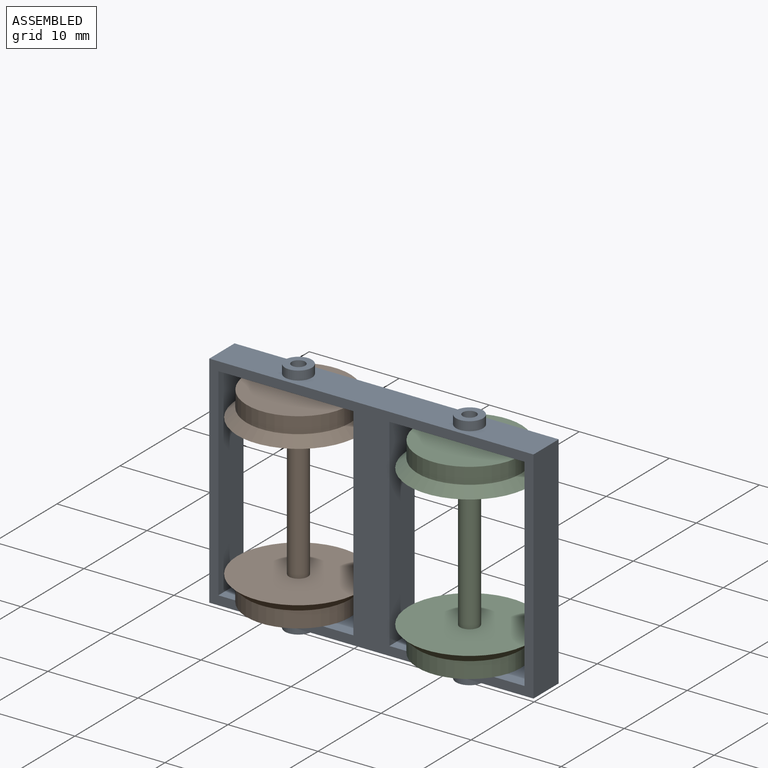
[diagram: assembled view]
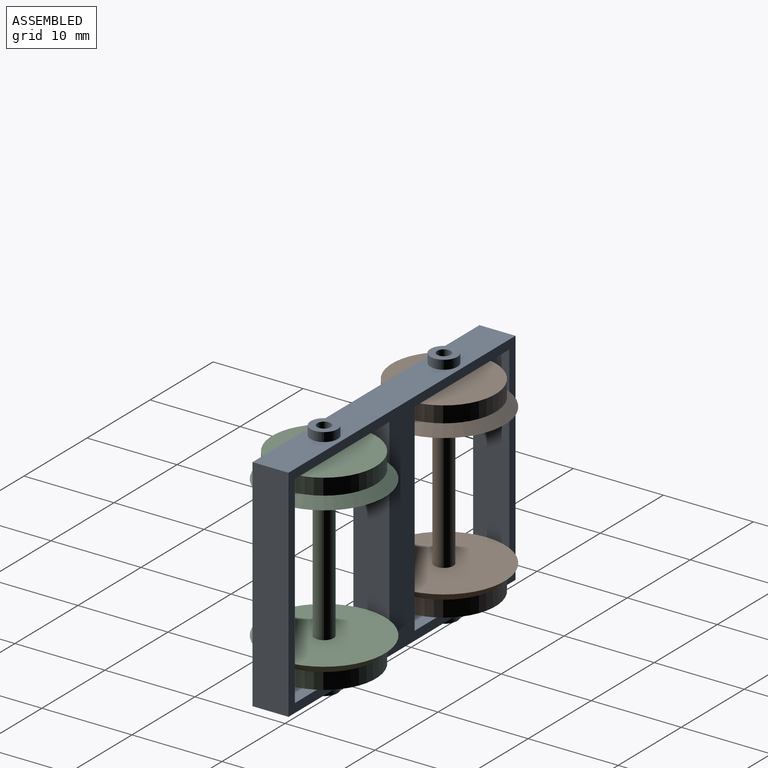
[diagram: assembled view, second angle]
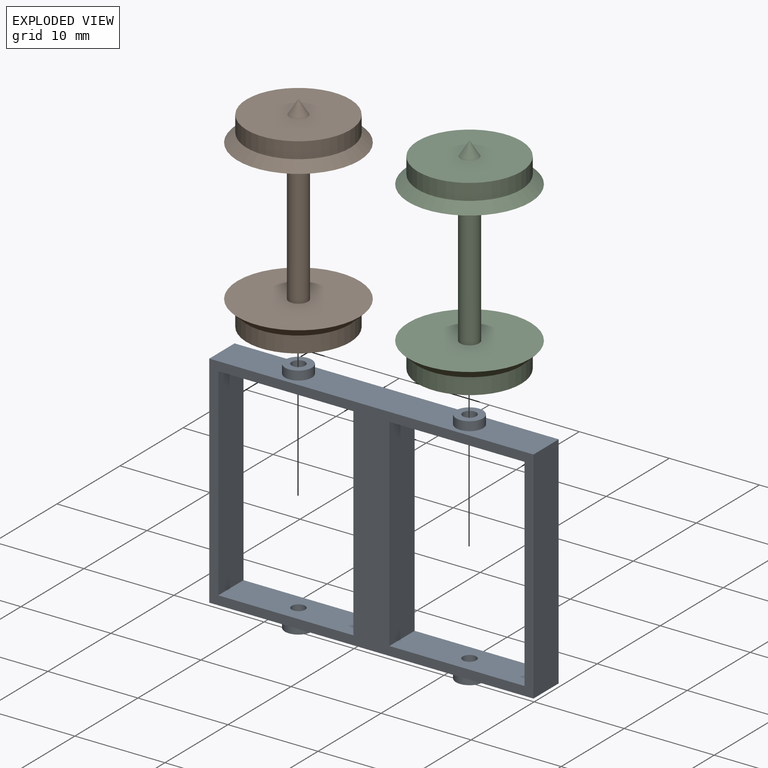
[diagram: exploded view]
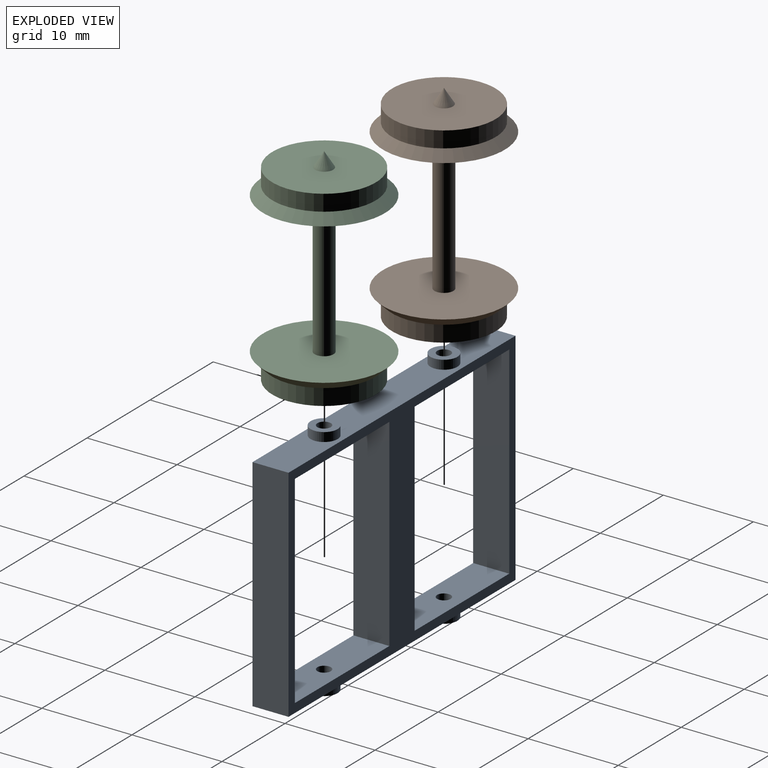
[diagram: exploded view, second angle]
ASSEMBLY  parts=3 mates=2
PART A: 26 faces, bbox 36x4x26.5 mm
  f0: plane 24.5x4mm, normal (-1,0,0), area 98mm2, adj f1,f5,f6,f10
  f1: plane 36x4mm, normal (0,0,-1), area 129.9mm2, adj f0,f5,f6,f8,f15,f20
  f2: plane 22.5x4mm, normal (-1,0,0), area 90mm2, adj f3,f5,f6,f11
  f3: plane 15x4mm, normal (0,0,1), area 58.2mm2, adj f2,f4,f5,f6,f7
  f4: plane 22.5x4mm, normal (1,0,0), area 90mm2, adj f3,f5,f6,f11
  f5: plane 36x24.5mm, normal (0,-1,0), area 207mm2, adj f0,f1,f2,f3,f4,f10,f11,f15
  f6: plane 36x24.5mm, normal (0,1,0), area 207mm2, adj f0,f1,f2,f3,f4,f10,f11,f15
  f7: cylinder r=0.75mm len=2mm, axis (0,0,1), area 9.4mm2, adj f3,f9
  f8: cylinder r=1.5mm len=3mm, axis (0,0,1), area 9.4mm2, adj f1,f9
  f9: plane 3x3mm, normal (0,0,-1), area 5.3mm2, adj f7,f8
  f10: plane 36x4mm, normal (0,0,1), area 129.9mm2, adj f0,f5,f6,f13,f15,f24
  f11: plane 15x4mm, normal (0,0,-1), area 58.2mm2, adj f2,f4,f5,f6,f12
  f12: cylinder r=0.75mm len=2mm, axis (0,0,-1), area 9.4mm2, adj f11,f14
  f13: cylinder r=1.5mm len=3mm, axis (0,0,-1), area 9.4mm2, adj f10,f14
  f14: plane 3x3mm, normal (0,0,1), area 5.3mm2, adj f12,f13
  f15: plane 24.5x4mm, normal (1,0,0), area 98mm2, adj f1,f5,f6,f10
  f16: plane 22.5x4mm, normal (1,0,0), area 90mm2, adj f5,f6,f17,f22
  f17: plane 15x4mm, normal (0,0,1), area 58.2mm2, adj f5,f6,f16,f18,f19
  f18: plane 22.5x4mm, normal (-1,0,0), area 90mm2, adj f5,f6,f17,f22
  f19: cylinder r=0.75mm len=2mm, axis (0,0,1), area 9.4mm2, adj f17,f21
  f20: cylinder r=1.5mm len=3mm, axis (0,0,1), area 9.4mm2, adj f1,f21
  f21: plane 3x3mm, normal (0,0,-1), area 5.3mm2, adj f19,f20
  f22: plane 15x4mm, normal (0,0,-1), area 58.2mm2, adj f5,f6,f16,f18,f23
  f23: cylinder r=0.75mm len=2mm, axis (0,0,-1), area 9.4mm2, adj f22,f25
  f24: cylinder r=1.5mm len=3mm, axis (0,0,-1), area 9.4mm2, adj f10,f25
  f25: plane 3x3mm, normal (0,0,1), area 5.3mm2, adj f23,f24
PART B: 11 faces, bbox 13.5x13.5x24.5 mm
  f0: cone r=0mm half-angle=32deg, axis (0,0,-1), area 5.9mm2, adj f1
  f1: plane 11.5x11.5mm, normal (0,0,1), area 100.7mm2, adj f0,f2
  f2: cylinder r=5.75mm len=11.5mm, axis (0,0,-1), area 65mm2, adj f1,f3
  f3: cone r=5.75mm half-angle=45.6deg, axis (0,0,-1), area 56.2mm2, adj f2,f4
  f4: plane 13.54x13.54mm, normal (0,0,-1), area 140.6mm2, adj f3,f5
  f5: cylinder r=1.05mm len=15.7mm, axis (0,0,-1), area 103.6mm2, adj f4,f6
  f6: plane 13.54x13.54mm, normal (0,0,1), area 140.6mm2, adj f5,f7
  f7: cone r=5.75mm half-angle=45.6deg, axis (0,0,1), area 56.2mm2, adj f6,f8
  f8: cylinder r=5.75mm len=11.5mm, axis (0,0,-1), area 65mm2, adj f7,f9
  f9: plane 11.5x11.5mm, normal (0,0,-1), area 100.7mm2, adj f8,f10
  f10: cone r=0mm half-angle=32deg, axis (0,0,1), area 5.9mm2, adj f9
PART C: same geometry as B
PLACE A t=(-6.86,-10.45,-14.03)mm
PLACE B t=(-25.86,-10.45,-1.78)mm
PLACE C t=(-6.86,-10.45,-1.78)mm
MATE revolute C.f0 <-> A.f20  axis (0,0,-1) through (-6.86,-10.45,10.47)mm
MATE revolute B.f0 <-> A.f7  axis (0,0,1) through (-25.86,-10.45,10.47)mm
